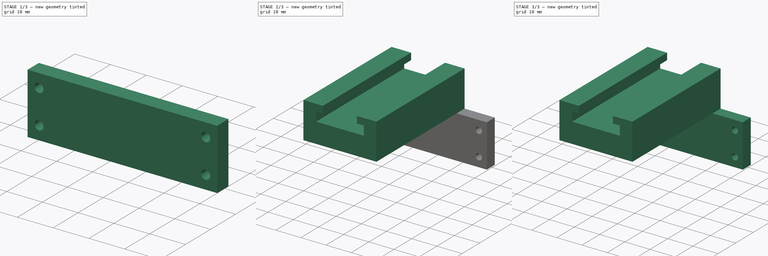
[diagram: build sequence overview — one tinted view per stage of 3, left to right]
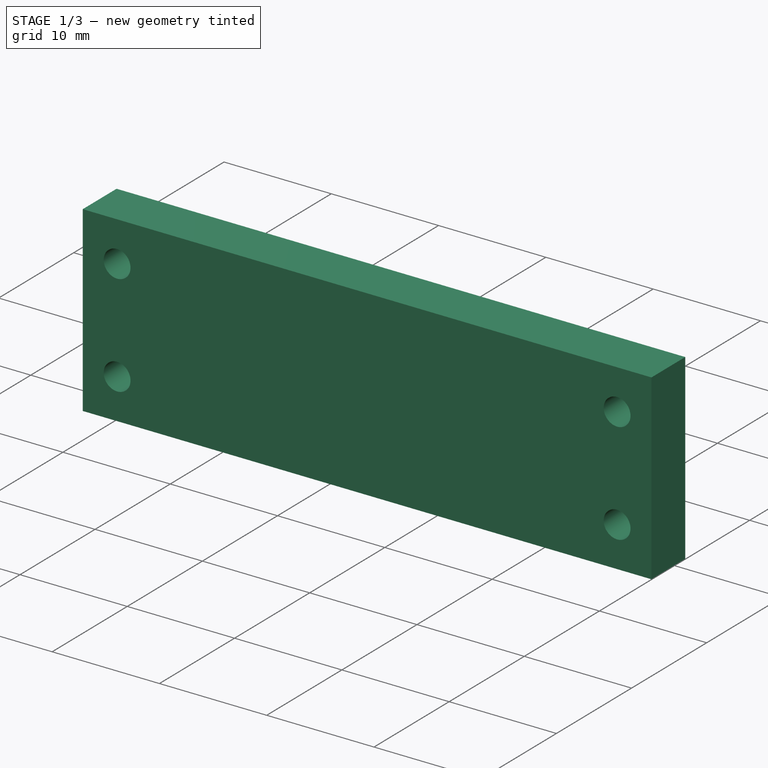
[diagram: stage 1 of 3 — iso view after this stage's code; geometry added in this stage tinted green]
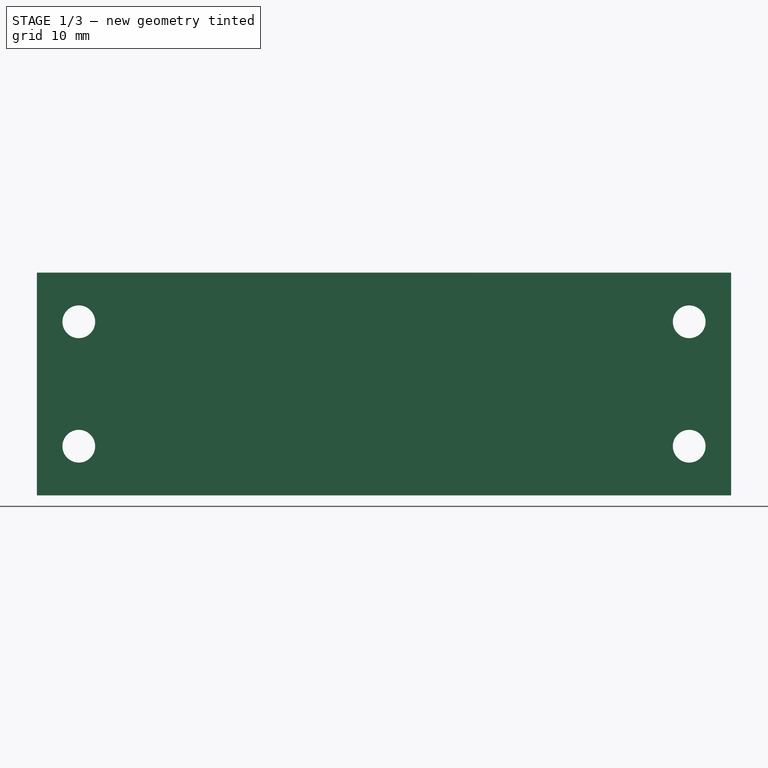
[diagram: stage 1 of 3 — front view after this stage's code; geometry added in this stage tinted green]
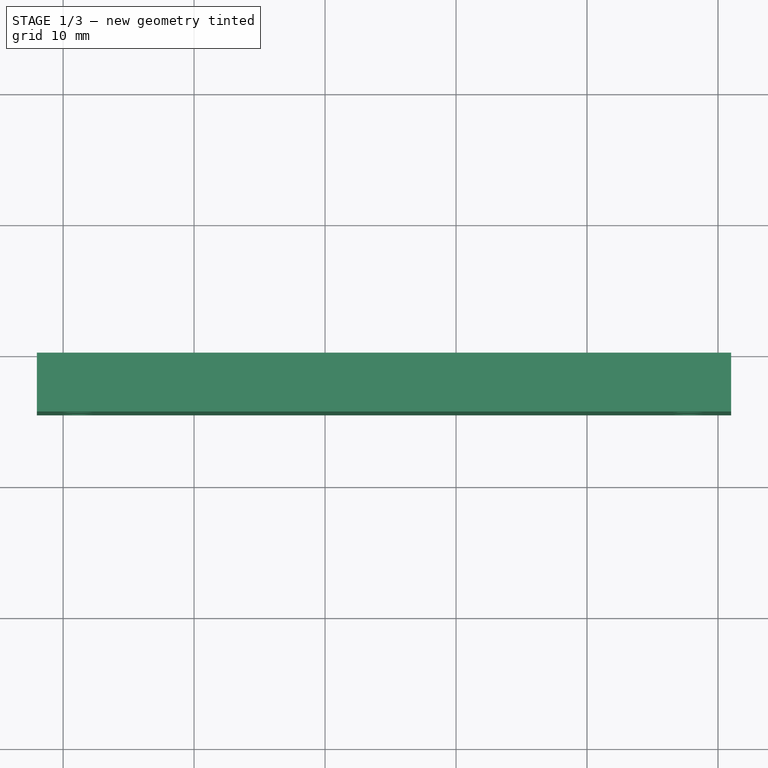
[diagram: stage 1 of 3 — top view after this stage's code; geometry added in this stage tinted green]
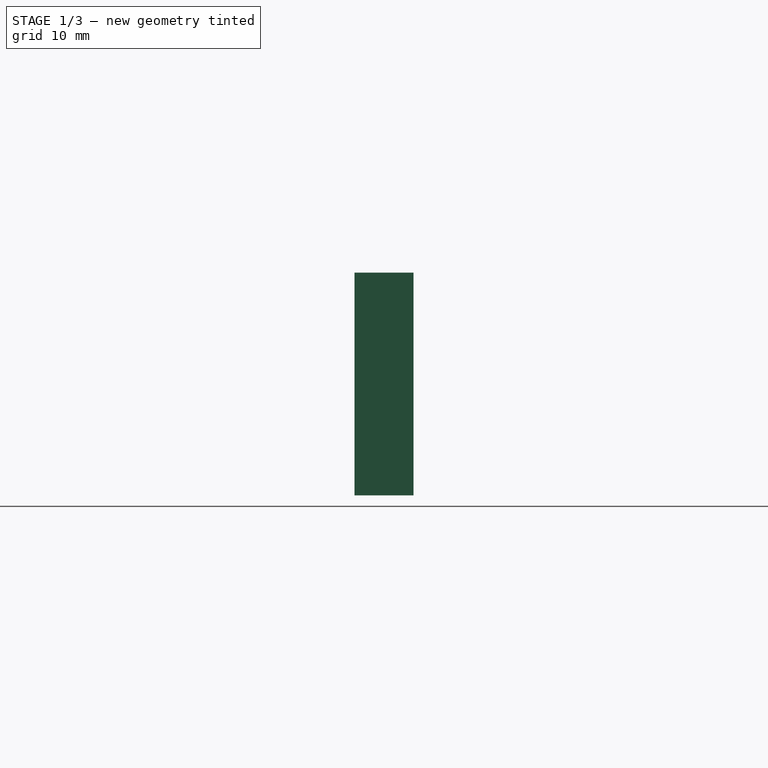
[diagram: stage 1 of 3 — right view after this stage's code; geometry added in this stage tinted green]
FCSTD DOCUMENT  (FreeCAD 0.19R)
Label: adapter_to_mount
License: All rights reserved
LicenseURL: http://en.wikipedia.org/wiki/All_rights_reserved
objects: Part::Extrusion×4, Sketcher::SketchObject×2, Part::MultiFuse×1
note: 7 computed .brp shape members not serialized (recipe doc carries the construction recipe); baked Part::Feature solids carry a one-line shape summary decoded from their .brp

FEATURE [Sketcher::SketchObject] Sketch001
  FullyConstrained = true
  Placement = pos=(0,0,0) rot=(-1,0,0;4.71239rad)
  sketch-geometry (8):
    g0: LineSegment StartX=-12 StartY=0 StartZ=0 EndX=41 EndY=0 EndZ=0
    g1: LineSegment StartX=41 StartY=0 StartZ=0 EndX=41 EndY=-17 EndZ=0
    g2: LineSegment StartX=41 StartY=-17 StartZ=0 EndX=-12 EndY=-17 EndZ=0
    g3: LineSegment StartX=-12 StartY=-17 StartZ=0 EndX=-12 EndY=0 EndZ=0
    g4: Circle CenterX=-8.8 CenterY=-3.75 CenterZ=0 NormalX=0 NormalY=0 NormalZ=1 AngleXU=0 Radius=1.25
    g5: Circle CenterX=-8.8 CenterY=-13.25 CenterZ=0 NormalX=0 NormalY=0 NormalZ=1 AngleXU=0 Radius=1.25
    g6: Circle CenterX=37.8 CenterY=-13.25 CenterZ=0 NormalX=0 NormalY=0 NormalZ=1 AngleXU=0 Radius=1.25
    g7: Circle CenterX=37.8 CenterY=-3.75 CenterZ=0 NormalX=0 NormalY=0 NormalZ=1 AngleXU=0 Radius=1.25
  constraints (24):
    c: Coincident(g0,g1)
    c: Coincident(g1,g2)
    c: Coincident(g2,g3)
    c: Coincident(g3,g0)
    c: Horizontal(g0)
    c: Horizontal(g2)
    c: Vertical(g1)
    c: Vertical(g3)
    c: PointOnObject(g0,g-1)
    c: Radius(g4) = 1.25
    c: Equal(g4,g5)
    c: Equal(g7,g4)
    c: Equal(g6,g7)
    c: DistanceY(g5,g4) = 9.5
    c: DistanceX(g2,g2) = 53
    c: DistanceY(g1,g1) = 17
    c: DistanceY(g6,g7) = 9.5
    c: DistanceY(g1,g6) = 3.75
    c: DistanceY(g2,g5) = 3.75
    c: DistanceX(g5,g6) = 46.6
    c: DistanceX(g4,g7) = 46.6
    c: DistanceX(g2,g5) = 3.2
    c: DistanceX(g0,g4) = 3.2
    c: DistanceX(g0,g-1) = 12
FEATURE [Part::Extrusion] Extrude002
  Base = -> Sketch001
  Dir = (0,-1,3e-16)
  DirMode = 2
  FaceMakerClass = Part::FaceMakerBullseye
  LengthFwd = 4.5
  LengthRev = 0
  Solid = true
  Symmetric = false
FEATURE [Part::Extrusion] Extrude003
  Base = -> Sketch001
  Dir = (0,-1,3e-16)
  DirMode = 2
  FaceMakerClass = Part::FaceMakerBullseye
  LengthFwd = 4.5
  LengthRev = 0
  Solid = true
  Symmetric = false
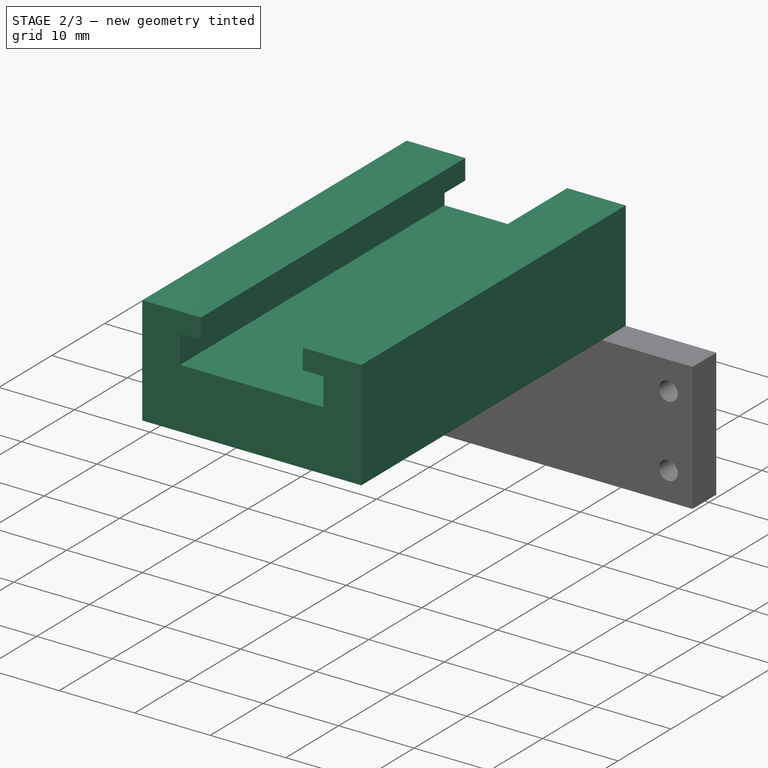
[diagram: stage 2 of 3 — iso view after this stage's code; geometry added in this stage tinted green]
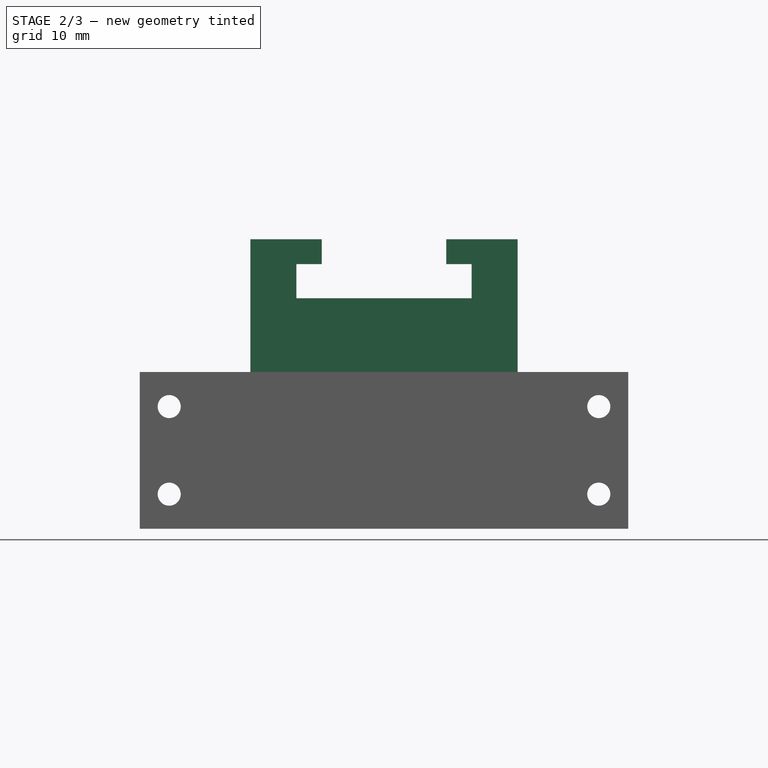
[diagram: stage 2 of 3 — front view after this stage's code; geometry added in this stage tinted green]
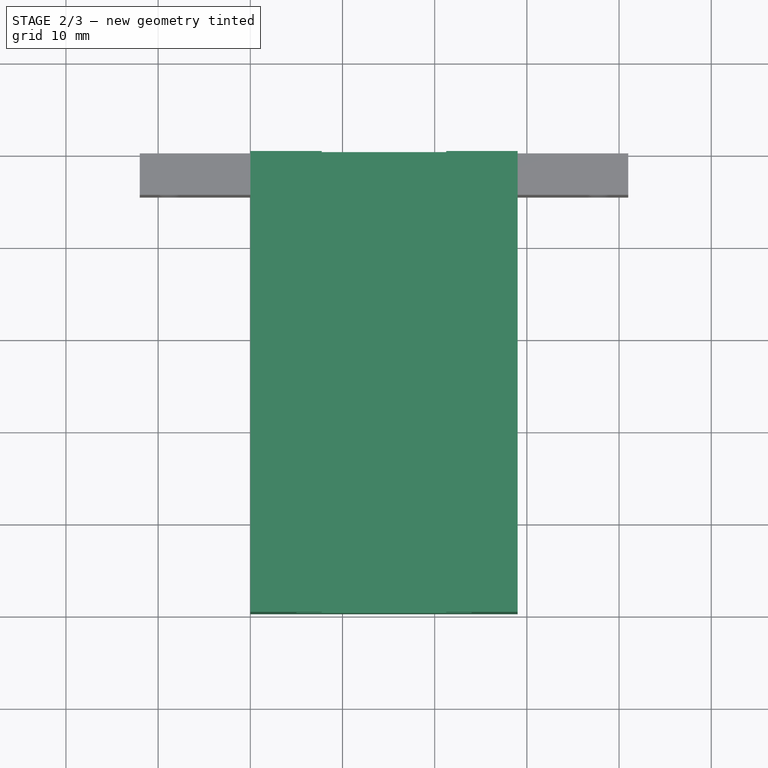
[diagram: stage 2 of 3 — top view after this stage's code; geometry added in this stage tinted green]
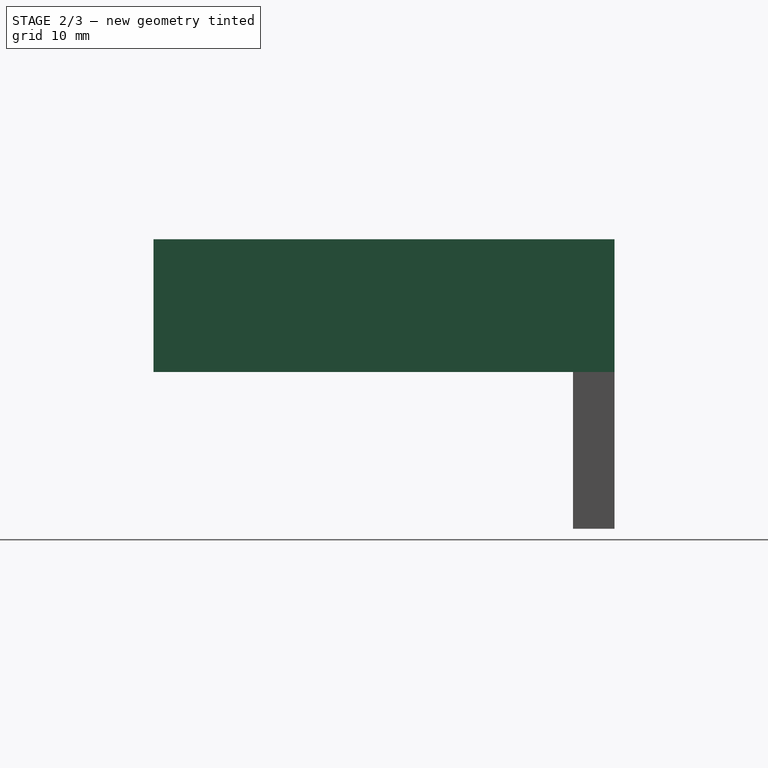
[diagram: stage 2 of 3 — right view after this stage's code; geometry added in this stage tinted green]
FEATURE [Part::Extrusion] Extrude001
  Base = -> Sketch
  Dir = (0,-1,3e-16)
  DirMode = 2
  FaceMakerClass = Part::FaceMakerBullseye
  LengthFwd = 50
  LengthRev = 0
  Solid = true
  Symmetric = false
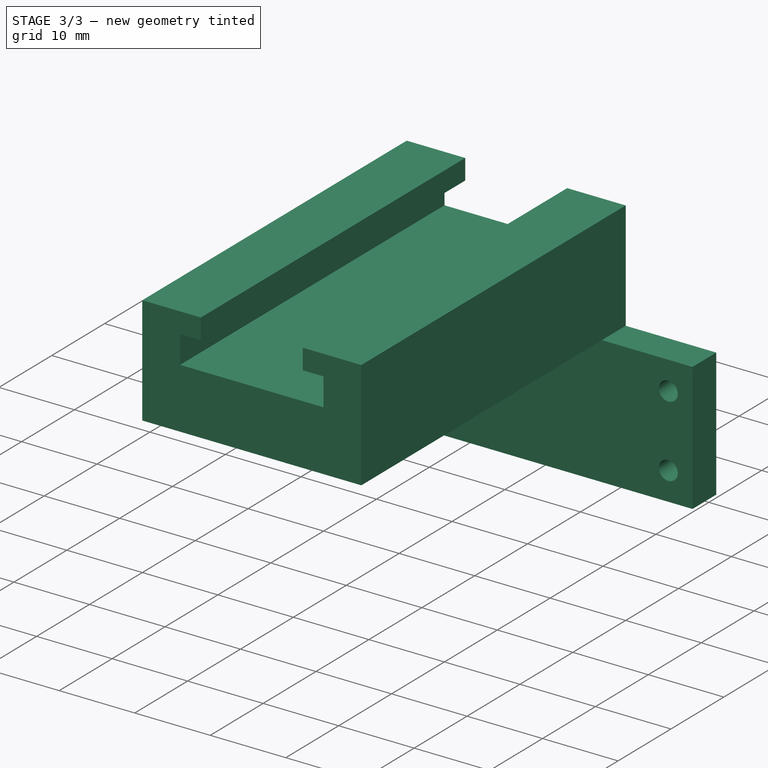
[diagram: stage 3 of 3 — iso view after this stage's code; geometry added in this stage tinted green]
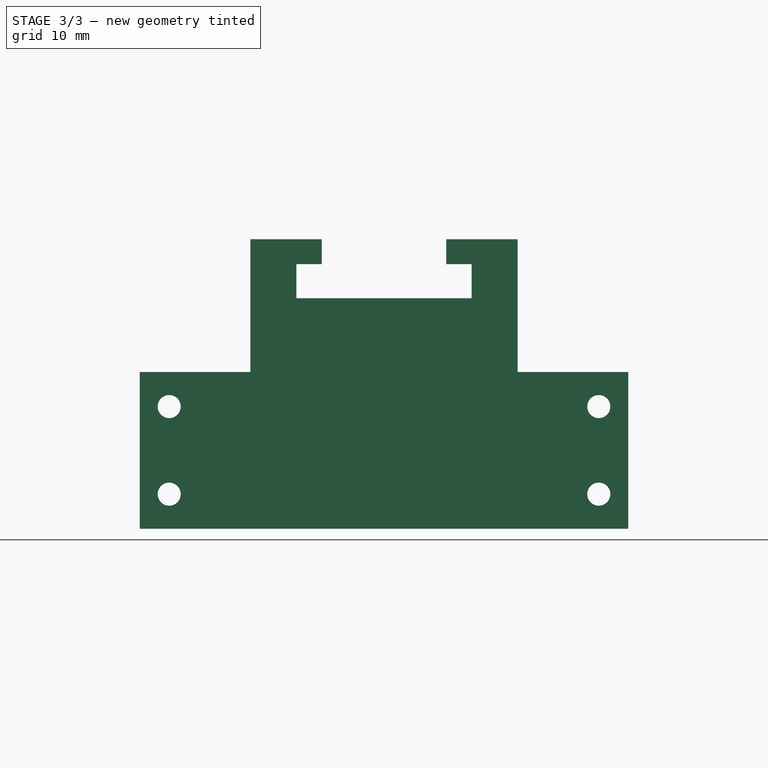
[diagram: stage 3 of 3 — front view after this stage's code; geometry added in this stage tinted green]
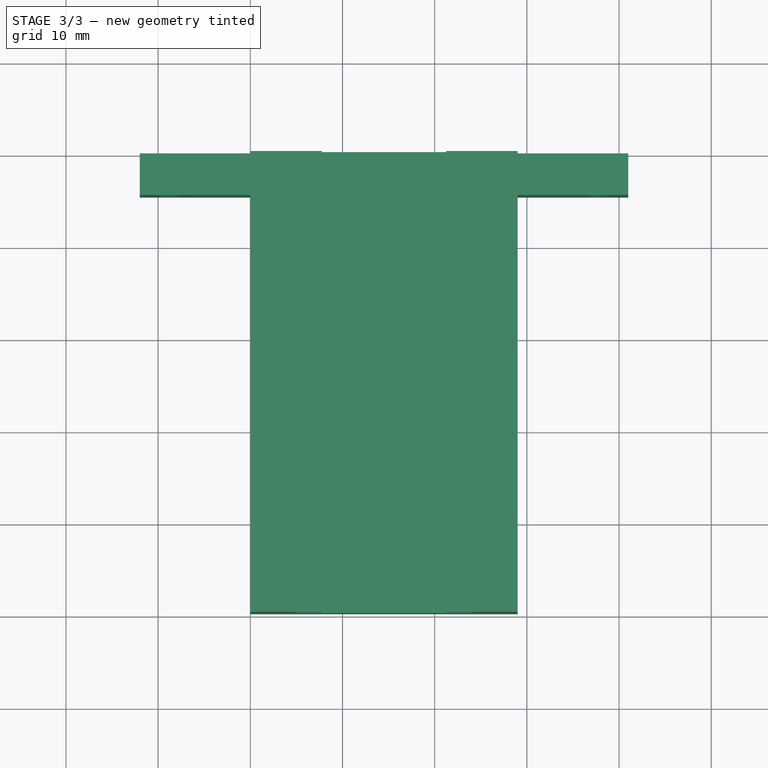
[diagram: stage 3 of 3 — top view after this stage's code; geometry added in this stage tinted green]
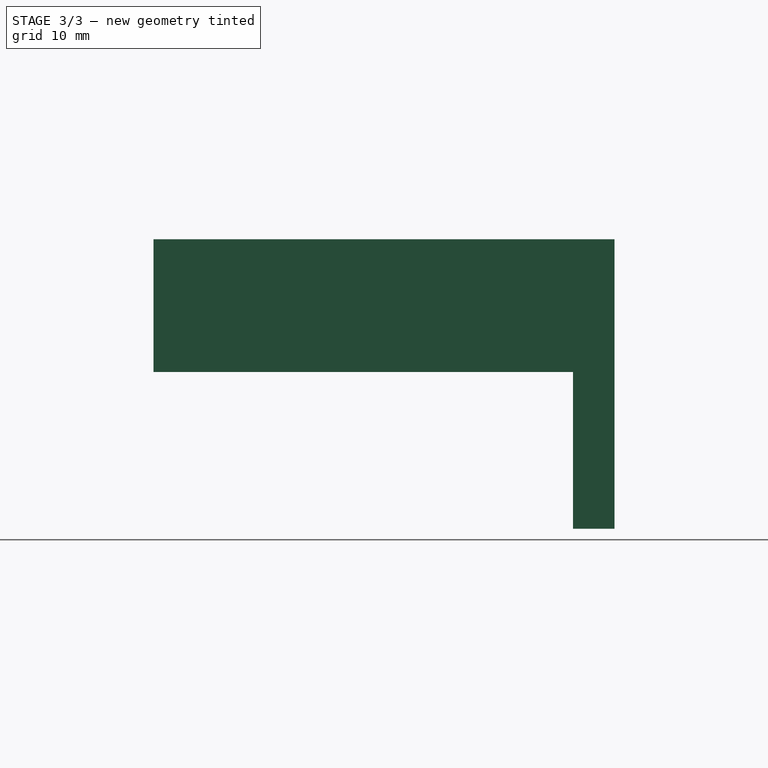
[diagram: stage 3 of 3 — right view after this stage's code; geometry added in this stage tinted green]
FEATURE [Sketcher::SketchObject] Sketch
  FullyConstrained = true
  Placement = pos=(0,0,0) rot=(-1,0,0;4.71239rad)
  sketch-geometry (21):
    g0: LineSegment StartX=0 StartY=0 StartZ=0 EndX=29 EndY=0 EndZ=0
    g1: LineSegment StartX=29 StartY=0 StartZ=0 EndX=29 EndY=8 EndZ=0
    g2: LineSegment StartX=29 StartY=8 StartZ=0 EndX=0 EndY=8 EndZ=0
    g3: LineSegment StartX=0 StartY=8 StartZ=0 EndX=0 EndY=0 EndZ=0
    g4: LineSegment StartX=0 StartY=8 StartZ=0 EndX=29 EndY=8 EndZ=0
    g5: LineSegment StartX=29 StartY=8 StartZ=0 EndX=29 EndY=11.7 EndZ=0
    g6: LineSegment StartX=29 StartY=11.7 StartZ=0 EndX=0 EndY=11.7 EndZ=0
    g7: LineSegment StartX=0 StartY=11.7 StartZ=0 EndX=0 EndY=8 EndZ=0
    g8: LineSegment StartX=0 StartY=11.7 StartZ=0 EndX=29 EndY=11.7 EndZ=0
    g9: LineSegment StartX=29 StartY=11.7 StartZ=0 EndX=29 EndY=14.4 EndZ=0
    g10: LineSegment StartX=29 StartY=14.4 StartZ=0 EndX=0 EndY=14.4 EndZ=0
    g11: LineSegment StartX=0 StartY=14.4 StartZ=0 EndX=0 EndY=11.7 EndZ=0
    g12: LineSegment StartX=7.75 StartY=14.4 StartZ=0 EndX=7.75 EndY=11.7 EndZ=0
    g13: LineSegment StartX=21.25 StartY=14.4 StartZ=0 EndX=21.25 EndY=11.7 EndZ=0
    g14: LineSegment StartX=5 StartY=11.7 StartZ=0 EndX=5 EndY=8 EndZ=0
    g15: LineSegment StartX=24 StartY=11.7 StartZ=0 EndX=24 EndY=8 EndZ=0
    g16: LineSegment StartX=0 StartY=14.4 StartZ=0 EndX=7.75 EndY=14.4 EndZ=0
    g17: LineSegment StartX=21.25 StartY=14.4 StartZ=0 EndX=29 EndY=14.4 EndZ=0
    g18: LineSegment StartX=5 StartY=11.7 StartZ=0 EndX=7.75 EndY=11.7 EndZ=0
    g19: LineSegment StartX=24 StartY=11.7 StartZ=0 EndX=21.25 EndY=11.7 EndZ=0
    g20: LineSegment StartX=5 StartY=8 StartZ=0 EndX=24 EndY=8 EndZ=0
  constraints (58):
    c: Coincident(g0,g1)
    c: Coincident(g1,g2)
    c: Coincident(g2,g3)
    c: Coincident(g3,g0)
    c: Horizontal(g0)
    c: Vertical(g1)
    c: Vertical(g3)
    c: Coincident(g0,g-1)
    c: Coincident(g4,g5)
    c: Coincident(g5,g6)
    c: Coincident(g6,g7)
    c: Coincident(g7,g4)
    c: Horizontal(g6)
    c: Vertical(g5)
    c: Vertical(g7)
    c: Coincident(g4,g2)
    c: Coincident(g8,g9)
    c: Coincident(g9,g10)
    c: Coincident(g10,g11)
    c: Coincident(g11,g8)
    c: Horizontal(g8)
    c: Horizontal(g10)
    c: Vertical(g9)
    c: Vertical(g11)
    c: PointOnObject(g12,g10)
    c: PointOnObject(g12,g6)
    c: Vertical(g12)
    c: PointOnObject(g13,g10)
    c: PointOnObject(g13,g6)
    c: Vertical(g13)
    c: PointOnObject(g14,g6)
    c: PointOnObject(g14,g2)
    c: PointOnObject(g15,g6)
    c: PointOnObject(g15,g2)
    c: Vertical(g15)
    c: Vertical(g14)
    c: Equal(g10,g2)
    c: Equal(g6,g2)
    c: DistanceX(g12,g13) = 13.5
    c: DistanceX(g14,g15) = 19
    c: DistanceX(g2,g14) = 5
    c: DistanceX(g15,g1) = 5
    c: DistanceX(g10,g12) = 7.75
    c: DistanceY(g1,g5) = 3.7
    c: DistanceY(g5,g9) = 2.7
    c: DistanceY(g0,g1) = 8
    c: Coincident(g16,g11)
    c: Coincident(g17,g13)
    c: Coincident(g18,g14)
    c: Coincident(g19,g15)
    c: Coincident(g19,g13)
    c: Coincident(g20,g14)
    c: Coincident(g18,g12)
    c: Coincident(g16,g12)
    c: Coincident(g20,g15)
    c: Coincident(g5,g1)
    c: Coincident(g9,g5)
    c: Coincident(g9,g17)
FEATURE [Part::Extrusion] Extrude
  Base = -> Sketch
  Dir = (0,-1,3e-16)
  DirMode = 2
  FaceMakerClass = Part::FaceMakerBullseye
  LengthFwd = 50
  LengthRev = 0
  Solid = true
  Symmetric = false
FEATURE [Part::MultiFuse] Fusion
  Shapes = -> [Extrude003,Extrude002,Extrude001,Extrude]
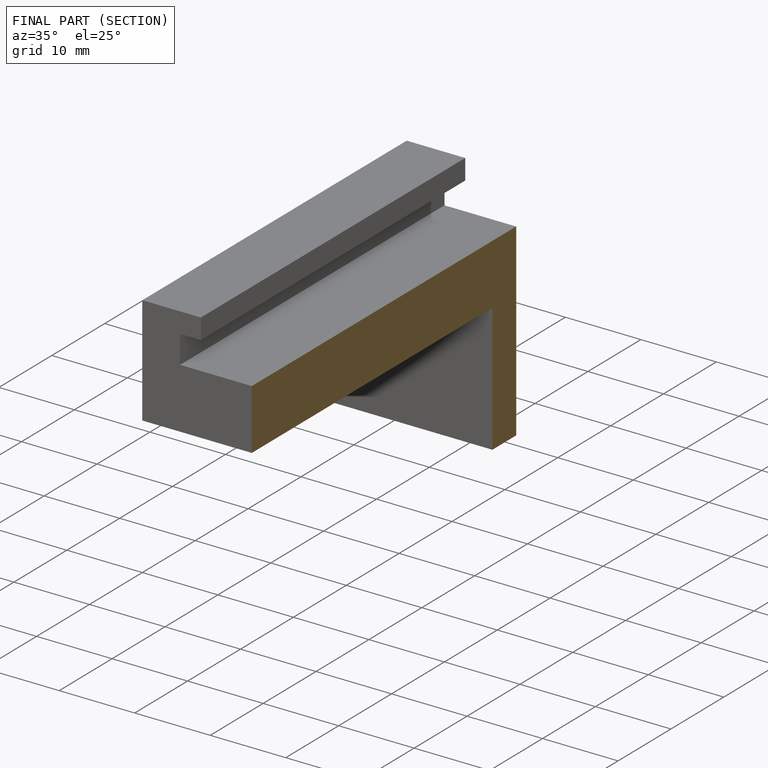
[diagram: finished part — half-section view (interior)]
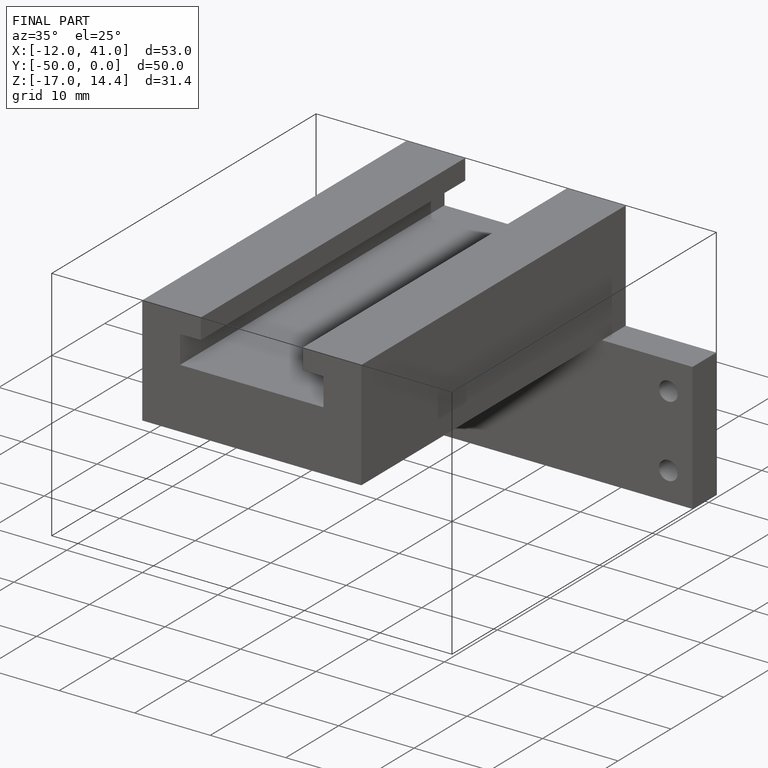
[diagram: finished part — iso view with bounding-box wireframe]
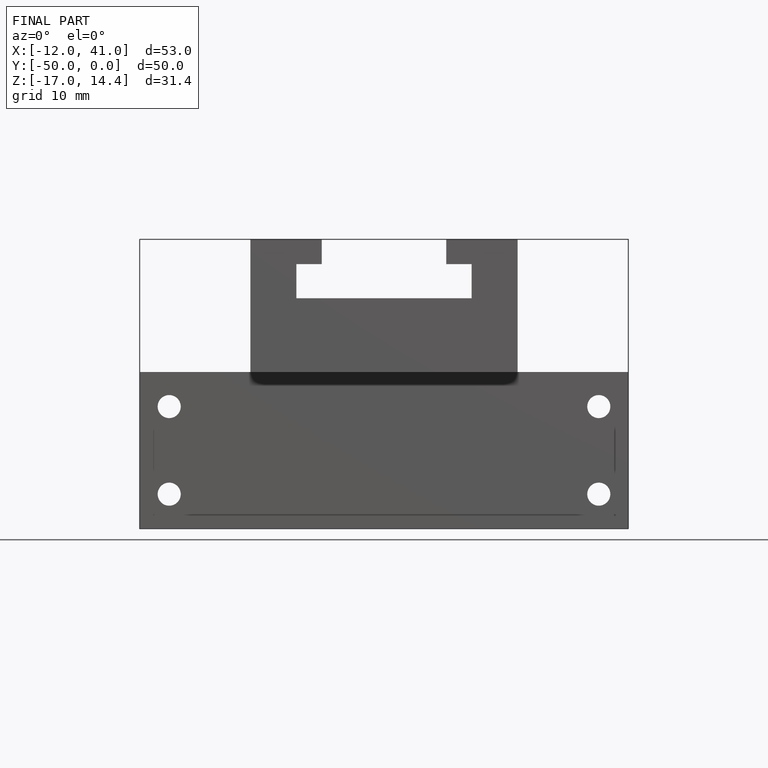
[diagram: finished part — front view with bounding-box wireframe]
